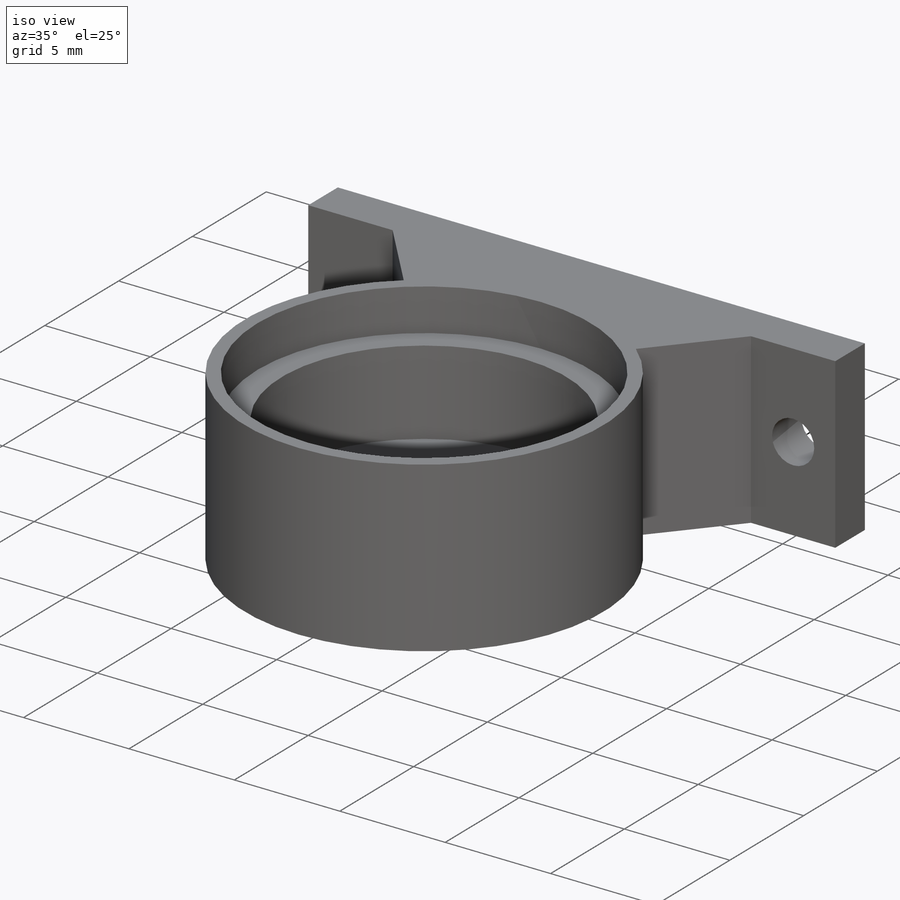
[diagram: iso view]
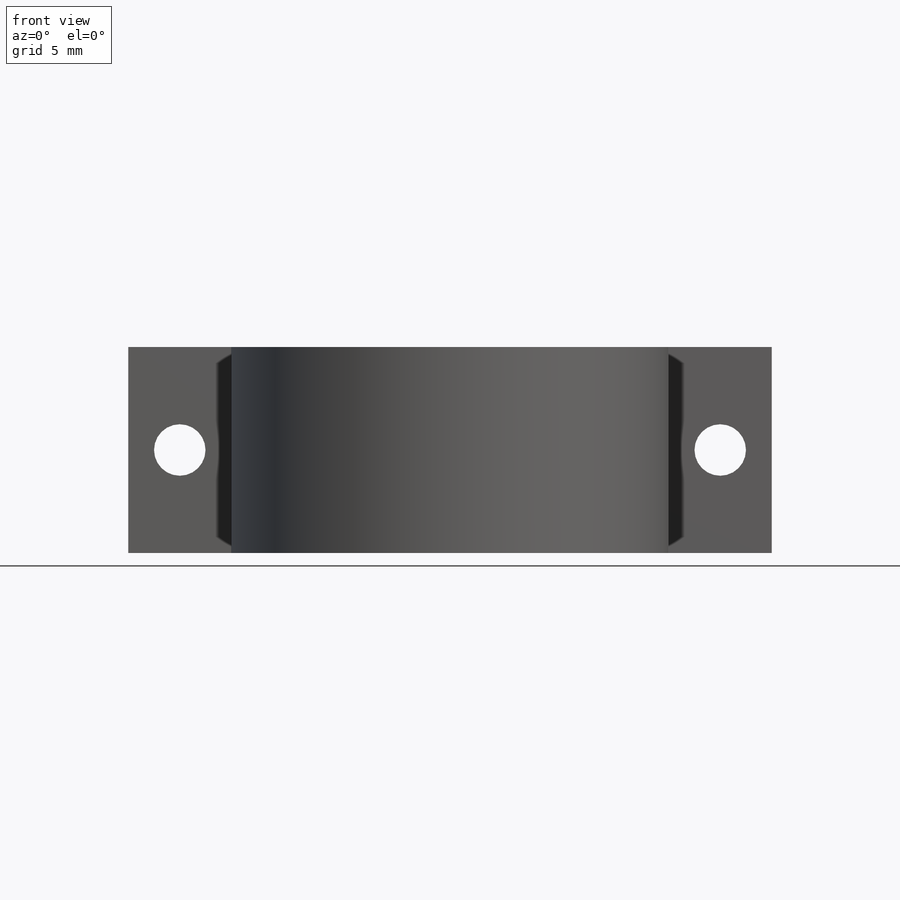
[diagram: front view]
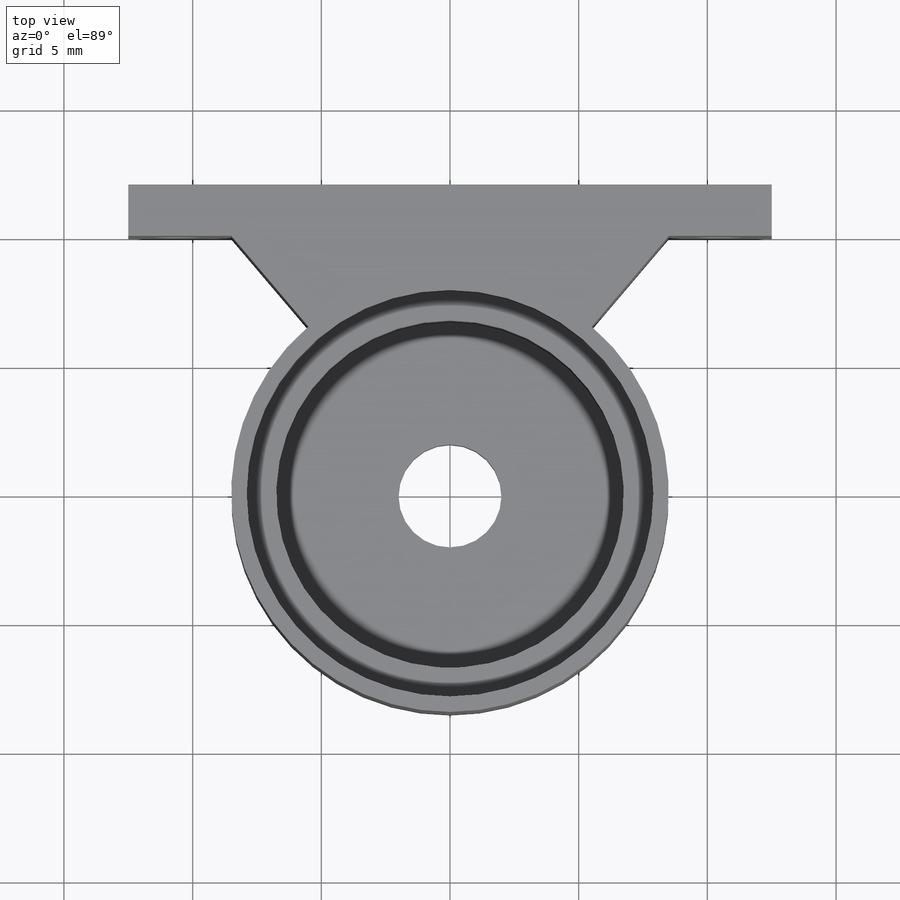
[diagram: top view]
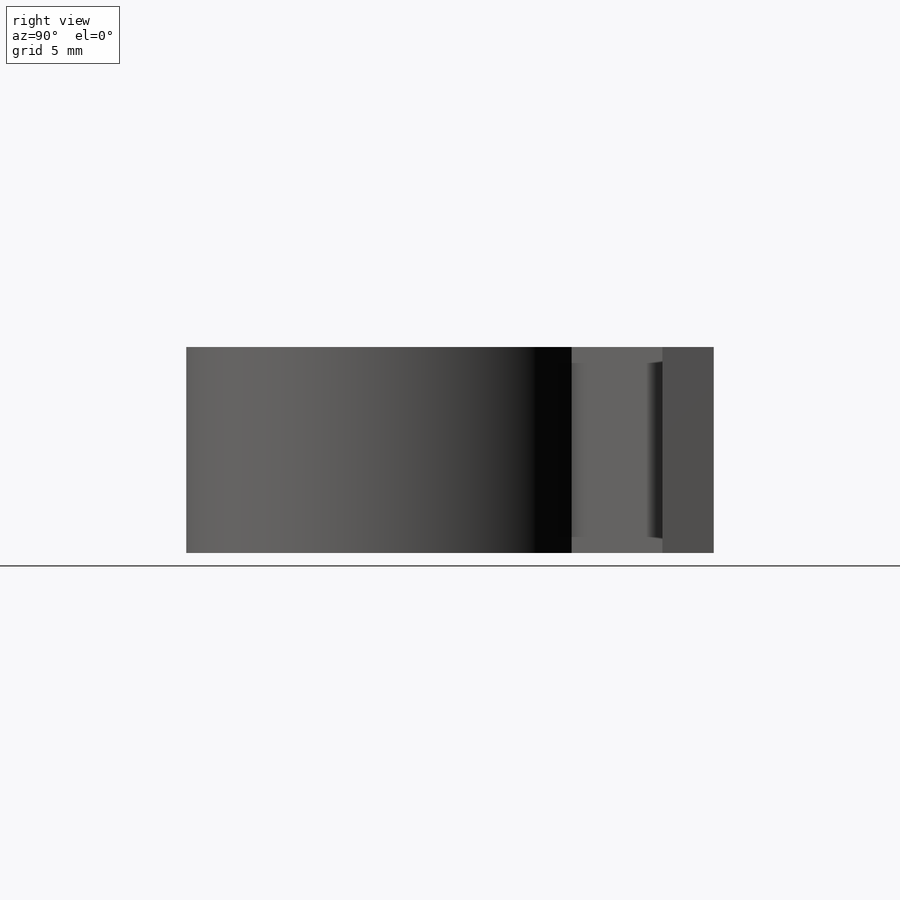
[diagram: right view]
SOLIDWORKS PART (.sldprt)
format: sldprt  version: not decoded by parser v0  size: 249,856 bytes
history: native  units: mm
features: sketch x6, extrude x5, plane x3, material x1, cut_extrude x1 (+9 scaffold rows collapsed)
feature tree (25):
  scaffold x9  (default folders/planes/origin — collapsed)
  material  "材质 <未指定>"
  plane  "前视基准面"
  plane  "上视基准面"
  plane  "右视基准面"
  sketch  "草图1"  dims[D1=13.5mm D2=16.0mm]
  extrude  "凸台-拉伸2"  Depth=6mm
  sketch  "草图2"  dims[D1=4.0mm]
  extrude  "凸台-拉伸3"  Depth=2mm
  sketch  "草图3"  dims[D1=15.8mm D2=17.0mm]
  extrude  "凸台-拉伸4"  Depth=2mm
  sketch  "草图4"
  extrude  "凸台-拉伸6"  Depth=6mm
  sketch  "草图6"  dims[D1=12.5mm D2=12.5mm D3=2.0mm D4=4.0mm]
  extrude  "凸台-拉伸8"  Depth=8mm
  sketch  "草图7"  dims[D3=2.0mm D4=2.0mm D1=10.5mm D2=10.5mm D5=10.5mm]
  cut_extrude  "切除-拉伸1"  Depth=8mm
decode coverage: 11 of 12 modeling features carry decoded parameters
note: suppression state not decoded; provenance and decode notes live in map.json
